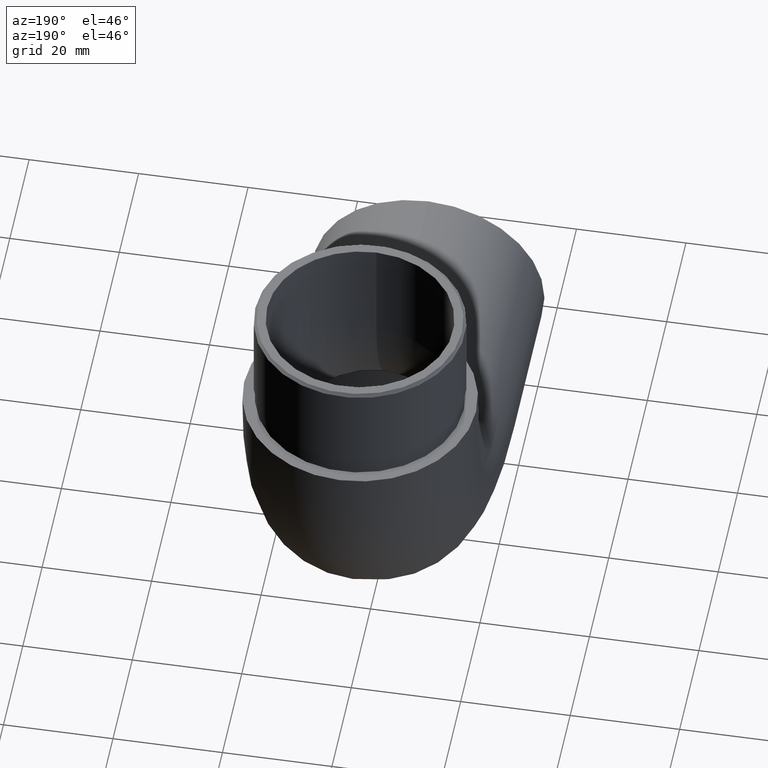
[diagram: clean part render]
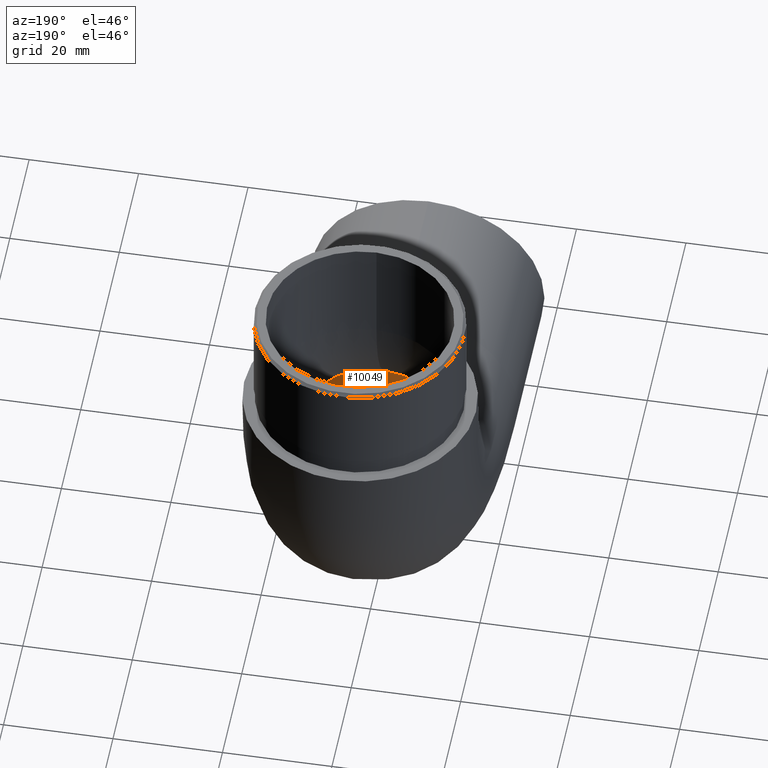
[diagram: same view with one face highlighted and labeled with its STEP entity id]
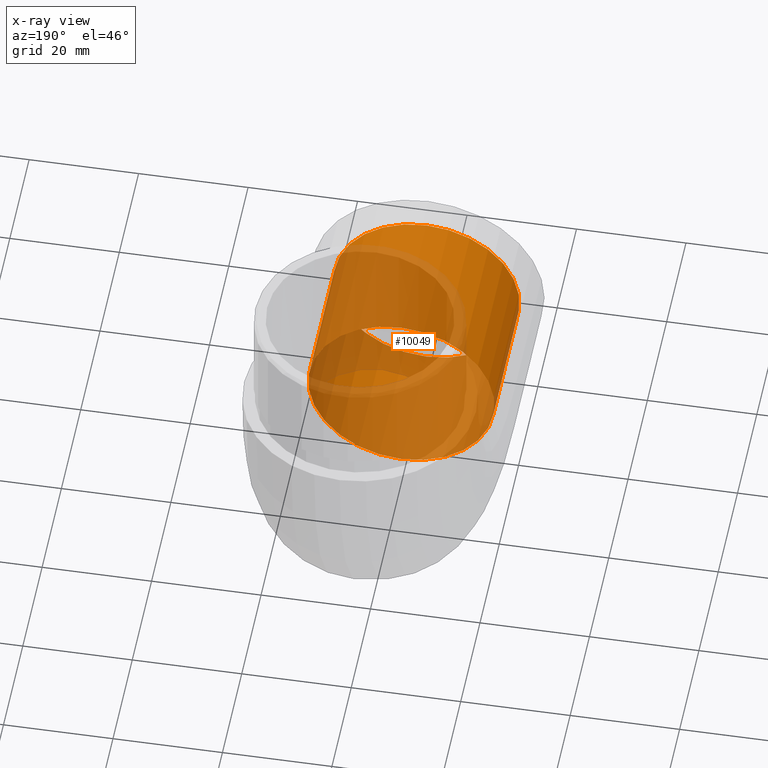
[diagram: x-ray of the same camera — body ghosted, the highlighted face saturated]
A machine part, auxiliary view. The second image highlights one B-rep face of the part: STEP entity #10049.
The next image is the same camera in x-ray: the body ghosted, the highlighted face saturated — about 73% of this face is hidden behind the body in this view.
In plain terms, the highlighted cylindrical surface (bore or boss wall) has radius 17 mm, axis along (-0, -1, -0).
Its self-contained STEP definition (entity closure, byte-faithful):
#232 = CARTESIAN_POINT ( 'NONE',  ( 0.0000000000000000000, 28.00000000000000000, 17.00000000000000000 ) ) ;
#1782 = DIRECTION ( 'NONE',  ( 0.0000000000000000000, 1.000000000000000000, 0.0000000000000000000 ) ) ;
#2573 = VERTEX_POINT ( 'NONE', #12465 ) ;
#2892 = FACE_OUTER_BOUND ( 'NONE', #3149, .T. ) ;
#3149 = EDGE_LOOP ( 'NONE', ( #8435 ) ) ;
#3414 = CARTESIAN_POINT ( 'NONE',  ( 0.0000000000000000000, 28.00000000000000000, 0.0000000000000000000 ) ) ;
#4865 = DIRECTION ( 'NONE',  ( 0.0000000000000000000, 0.0000000000000000000, -1.000000000000000000 ) ) ;
#5272 = EDGE_CURVE ( 'NONE', #2573, #2573, #8760, .T. ) ;
#6830 = CARTESIAN_POINT ( 'NONE',  ( 0.0000000000000000000, 1.999999999999998200, 0.0000000000000000000 ) ) ;
#6976 = DIRECTION ( 'NONE',  ( 0.0000000000000000000, -1.000000000000000000, 0.0000000000000000000 ) ) ;
#7104 = AXIS2_PLACEMENT_3D ( 'NONE', #3414, #11122, #7703 ) ;
#7703 = DIRECTION ( 'NONE',  ( 0.0000000000000000000, 0.0000000000000000000, -1.000000000000000000 ) ) ;
#8031 = CIRCLE ( 'NONE', #11628, 17.00000000000000000 ) ;
#8435 = ORIENTED_EDGE ( 'NONE', *, *, #8507, .T. ) ;
#8507 = EDGE_CURVE ( 'NONE', #13253, #13253, #8031, .T. ) ;
#8760 = CIRCLE ( 'NONE', #10642, 17.00000000000000000 ) ;
#9662 = EDGE_LOOP ( 'NONE', ( #10823 ) ) ;
#10049 = ADVANCED_FACE ( 'NONE', ( #2892, #13393 ), #12365, .F. ) ;
#10642 = AXIS2_PLACEMENT_3D ( 'NONE', #6830, #6976, #4865 ) ;
#10823 = ORIENTED_EDGE ( 'NONE', *, *, #5272, .T. ) ;
#11122 = DIRECTION ( 'NONE',  ( -0.0000000000000000000, -1.000000000000000000, -0.0000000000000000000 ) ) ;
#11628 = AXIS2_PLACEMENT_3D ( 'NONE', #13901, #1782, #12777 ) ;
#12365 = CYLINDRICAL_SURFACE ( 'NONE', #7104, 17.00000000000000000 ) ;
#12465 = CARTESIAN_POINT ( 'NONE',  ( 0.0000000000000000000, 1.999999999999998200, -17.00000000000000000 ) ) ;
#12777 = DIRECTION ( 'NONE',  ( 0.0000000000000000000, 0.0000000000000000000, 1.000000000000000000 ) ) ;
#13253 = VERTEX_POINT ( 'NONE', #232 ) ;
#13393 = FACE_OUTER_BOUND ( 'NONE', #9662, .T. ) ;
#13901 = CARTESIAN_POINT ( 'NONE',  ( 0.0000000000000000000, 28.00000000000000000, 0.0000000000000000000 ) ) ;